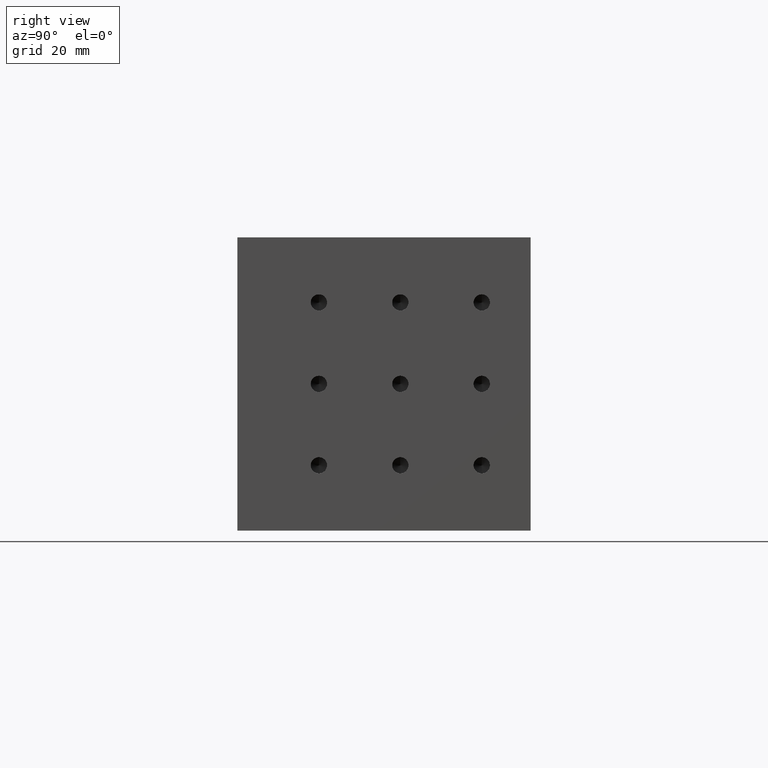
[diagram: clean part render]
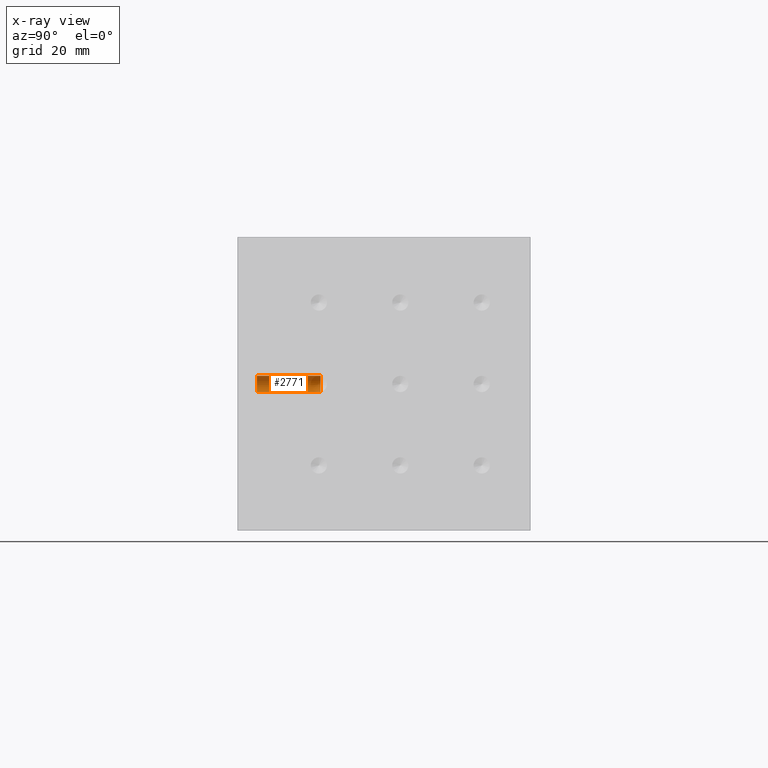
[diagram: x-ray — body ghosted, one internal face saturated and labeled with its STEP entity id]
A machine part, right view, then the same camera in x-ray: the body is ghosted and one INTERNAL B-rep face — a face not visible from any outside direction — is saturated and labeled: STEP entity #2771.
In plain terms, the highlighted cylindrical surface (edge-blend (fillet) strip) has radius 2.5 mm, axis along (0, 1, 0).
Its self-contained STEP definition (entity closure, byte-faithful):
#40 = VERTEX_POINT ( 'NONE', #4016 ) ;
#64 = ORIENTED_EDGE ( 'NONE', *, *, #3514, .F. ) ;
#180 = EDGE_CURVE ( 'NONE', #40, #1527, #3993, .T. ) ;
#251 = EDGE_CURVE ( 'NONE', #1527, #1795, #1936, .T. ) ;
#346 = CYLINDRICAL_SURFACE ( 'NONE', #836, 2.500000000000002200 ) ;
#507 = EDGE_LOOP ( 'NONE', ( #64, #4252, #3548, #4383 ) ) ;
#599 = DIRECTION ( 'NONE',  ( 0.0000000000000000000, 1.000000000000000000, 0.0000000000000000000 ) ) ;
#600 = EDGE_CURVE ( 'NONE', #2163, #40, #3806, .T. ) ;
#613 = DIRECTION ( 'NONE',  ( 0.0000000000000000000, 1.000000000000000000, 0.0000000000000000000 ) ) ;
#836 = AXIS2_PLACEMENT_3D ( 'NONE', #4739, #613, #1120 ) ;
#1012 = CARTESIAN_POINT ( 'NONE',  ( 119.8969387244427500, 110.7146020396520500, 141.3158939252802800 ) ) ;
#1120 = DIRECTION ( 'NONE',  ( 0.0000000000000000000, 0.0000000000000000000, 1.000000000000000000 ) ) ;
#1271 = DIRECTION ( 'NONE',  ( 0.0000000000000000000, -1.000000000000000000, 0.0000000000000000000 ) ) ;
#1527 = VERTEX_POINT ( 'NONE', #2108 ) ;
#1626 = DIRECTION ( 'NONE',  ( 0.0000000000000000000, 1.000000000000000000, 0.0000000000000000000 ) ) ;
#1734 = DIRECTION ( 'NONE',  ( 0.0000000000000000000, 0.0000000000000000000, -1.000000000000000000 ) ) ;
#1753 = CARTESIAN_POINT ( 'NONE',  ( 119.8969387244427500, 91.21460203965206400, 141.3158939252802800 ) ) ;
#1795 = VERTEX_POINT ( 'NONE', #1012 ) ;
#1915 = CARTESIAN_POINT ( 'NONE',  ( 119.8969387244427500, 91.21460203965206400, 143.8158939252802800 ) ) ;
#1936 = CIRCLE ( 'NONE', #3043, 2.500000000000002200 ) ;
#2069 = VECTOR ( 'NONE', #1626, 1000.000000000000000 ) ;
#2108 = CARTESIAN_POINT ( 'NONE',  ( 119.8969387244427500, 110.7146020396520500, 146.3158939252802800 ) ) ;
#2163 = VERTEX_POINT ( 'NONE', #1753 ) ;
#2721 = VECTOR ( 'NONE', #2738, 1000.000000000000000 ) ;
#2738 = DIRECTION ( 'NONE',  ( 0.0000000000000000000, 1.000000000000000000, 0.0000000000000000000 ) ) ;
#2771 = ADVANCED_FACE ( 'NONE', ( #3648 ), #346, .T. ) ;
#3043 = AXIS2_PLACEMENT_3D ( 'NONE', #3653, #1271, #1734 ) ;
#3514 = EDGE_CURVE ( 'NONE', #2163, #1795, #3953, .T. ) ;
#3548 = ORIENTED_EDGE ( 'NONE', *, *, #180, .T. ) ;
#3648 = FACE_OUTER_BOUND ( 'NONE', #507, .T. ) ;
#3653 = CARTESIAN_POINT ( 'NONE',  ( 119.8969387244427500, 110.7146020396520500, 143.8158939252802800 ) ) ;
#3806 = CIRCLE ( 'NONE', #3942, 2.500000000000002200 ) ;
#3942 = AXIS2_PLACEMENT_3D ( 'NONE', #1915, #599, #4310 ) ;
#3953 = LINE ( 'NONE', #3974, #2721 ) ;
#3974 = CARTESIAN_POINT ( 'NONE',  ( 119.8969387244427500, 129.9059063874781500, 141.3158939252802800 ) ) ;
#3993 = LINE ( 'NONE', #4943, #2069 ) ;
#4016 = CARTESIAN_POINT ( 'NONE',  ( 119.8969387244427500, 91.21460203965206400, 146.3158939252802800 ) ) ;
#4252 = ORIENTED_EDGE ( 'NONE', *, *, #600, .T. ) ;
#4310 = DIRECTION ( 'NONE',  ( 0.0000000000000000000, 0.0000000000000000000, 1.000000000000000000 ) ) ;
#4383 = ORIENTED_EDGE ( 'NONE', *, *, #251, .T. ) ;
#4739 = CARTESIAN_POINT ( 'NONE',  ( 119.8969387244427500, 129.9059063874781500, 143.8158939252802800 ) ) ;
#4943 = CARTESIAN_POINT ( 'NONE',  ( 119.8969387244427500, 129.9059063874781500, 146.3158939252802800 ) ) ;